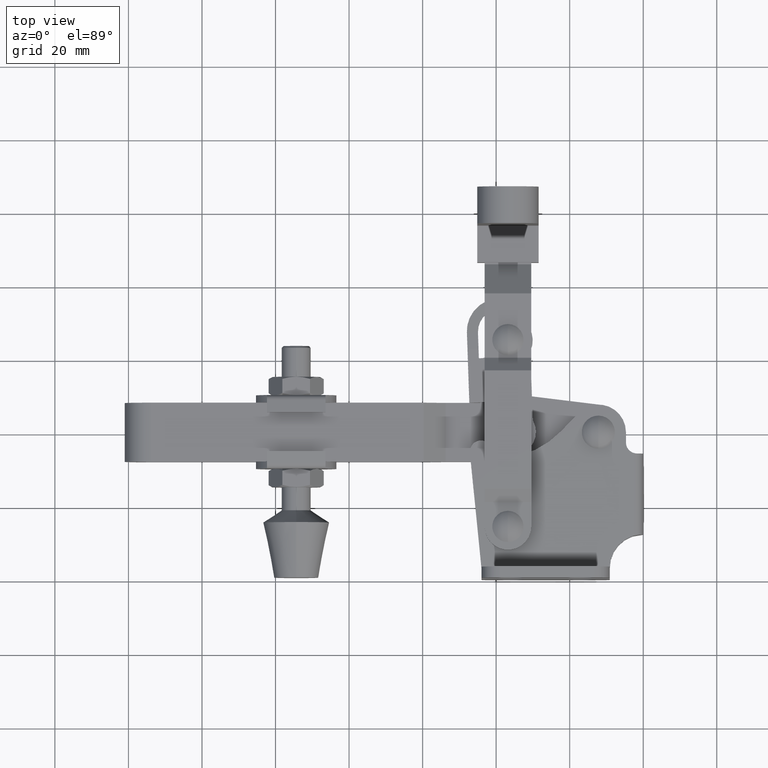
[diagram: clean part render]
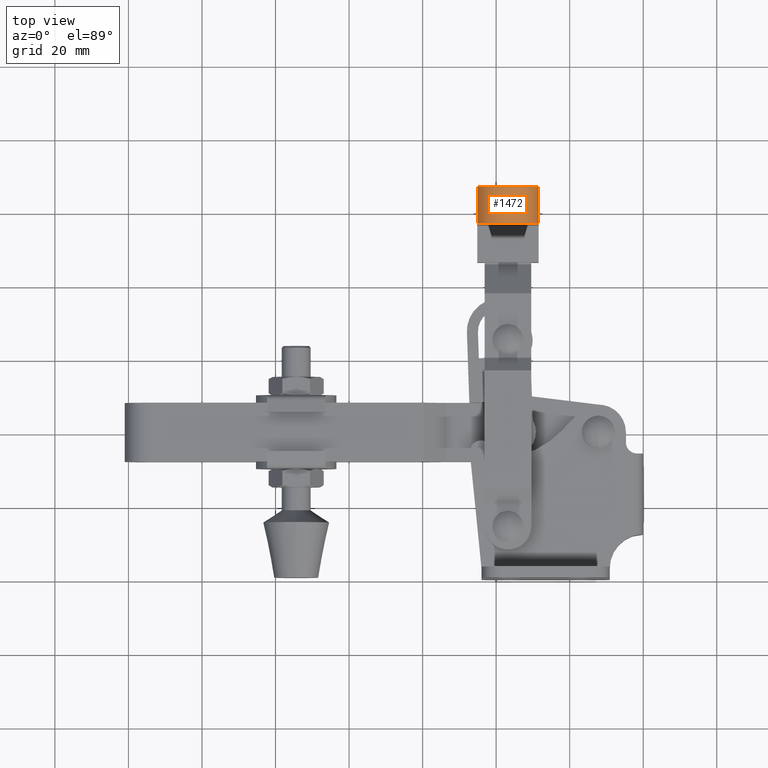
[diagram: same view with one face highlighted and labeled with its STEP entity id]
A machine part, top view. The second image highlights one B-rep face of the part: STEP entity #1472.
In plain terms, the highlighted cylindrical surface (edge-blend (fillet) strip) has radius 8.35 mm, axis along (-0, 1, -0).
Its self-contained STEP definition (entity closure, byte-faithful):
#210 = EDGE_CURVE ( 'NONE', #6701, #5491, #8953, .T. ) ;
#784 = CARTESIAN_POINT ( 'NONE',  ( -36.80000000000017500, 85.98999999999996600, 37.65000000000002000 ) ) ;
#911 = VECTOR ( 'NONE', #4112, 1000.000000000000000 ) ;
#1472 = ADVANCED_FACE ( 'NONE', ( #3806 ), #9649, .T. ) ;
#1497 = ORIENTED_EDGE ( 'NONE', *, *, #6555, .F. ) ;
#1597 = EDGE_LOOP ( 'NONE', ( #4856, #8350, #6668, #1497 ) ) ;
#2007 = EDGE_CURVE ( 'NONE', #6701, #8187, #10925, .T. ) ;
#2745 = DIRECTION ( 'NONE',  ( -1.000000000000000000, 0.0000000000000000000, 0.0000000000000000000 ) ) ;
#2839 = DIRECTION ( 'NONE',  ( -3.836121266936960200E-033, 1.000000000000000000, -2.312983789176260900E-015 ) ) ;
#3053 = CIRCLE ( 'NONE', #7340, 8.349999999999999600 ) ;
#3699 = CARTESIAN_POINT ( 'NONE',  ( -45.15000000000017600, 85.98999999999996600, 37.65000000000002000 ) ) ;
#3806 = FACE_OUTER_BOUND ( 'NONE', #1597, .T. ) ;
#3870 = CARTESIAN_POINT ( 'NONE',  ( -28.45000000000017700, 85.98999999999996600, 37.65000000000002000 ) ) ;
#3983 = CARTESIAN_POINT ( 'NONE',  ( -45.15000000000017600, 95.99999999999980100, 37.65000000000002000 ) ) ;
#4112 = DIRECTION ( 'NONE',  ( -3.836121266936960200E-033, 1.000000000000000000, -2.312983789176260900E-015 ) ) ;
#4211 = AXIS2_PLACEMENT_3D ( 'NONE', #11218, #8736, #2745 ) ;
#4253 = LINE ( 'NONE', #3699, #911 ) ;
#4609 = DIRECTION ( 'NONE',  ( -3.836121266936960200E-033, 1.000000000000000000, -2.312983789176260900E-015 ) ) ;
#4856 = ORIENTED_EDGE ( 'NONE', *, *, #2007, .F. ) ;
#5400 = VERTEX_POINT ( 'NONE', #9815 ) ;
#5491 = VERTEX_POINT ( 'NONE', #8035 ) ;
#5763 = AXIS2_PLACEMENT_3D ( 'NONE', #784, #8554, #8316 ) ;
#6555 = EDGE_CURVE ( 'NONE', #8187, #5400, #4253, .T. ) ;
#6668 = ORIENTED_EDGE ( 'NONE', *, *, #9521, .F. ) ;
#6701 = VERTEX_POINT ( 'NONE', #10708 ) ;
#7340 = AXIS2_PLACEMENT_3D ( 'NONE', #7954, #2839, #8839 ) ;
#7954 = CARTESIAN_POINT ( 'NONE',  ( -36.80000000000017500, 105.9999999999999700, 37.64999999999997000 ) ) ;
#8035 = CARTESIAN_POINT ( 'NONE',  ( -28.45000000000017700, 105.9999999999999700, 37.64999999999997000 ) ) ;
#8187 = VERTEX_POINT ( 'NONE', #3983 ) ;
#8316 = DIRECTION ( 'NONE',  ( 0.0000000000000000000, -1.662010515905923000E-015, -1.000000000000000000 ) ) ;
#8350 = ORIENTED_EDGE ( 'NONE', *, *, #210, .T. ) ;
#8554 = DIRECTION ( 'NONE',  ( -3.836121266936960200E-033, 1.000000000000000000, -2.312983789176260900E-015 ) ) ;
#8681 = VECTOR ( 'NONE', #4609, 1000.000000000000000 ) ;
#8736 = DIRECTION ( 'NONE',  ( -0.0000000000000000000, -1.000000000000000000, 1.915454074022858400E-020 ) ) ;
#8839 = DIRECTION ( 'NONE',  ( 0.0000000000000000000, -1.662010515905923000E-015, -1.000000000000000000 ) ) ;
#8953 = LINE ( 'NONE', #3870, #8681 ) ;
#9521 = EDGE_CURVE ( 'NONE', #5400, #5491, #3053, .T. ) ;
#9649 = CYLINDRICAL_SURFACE ( 'NONE', #5763, 8.349999999999999600 ) ;
#9815 = CARTESIAN_POINT ( 'NONE',  ( -45.15000000000017600, 105.9999999999999700, 37.64999999999997000 ) ) ;
#10708 = CARTESIAN_POINT ( 'NONE',  ( -28.45000000000017700, 95.99999999999980100, 37.65000000000002000 ) ) ;
#10925 = CIRCLE ( 'NONE', #4211, 8.350000000000003200 ) ;
#11218 = CARTESIAN_POINT ( 'NONE',  ( -36.80000000000017500, 95.99999999999980100, 37.64999999999999900 ) ) ;